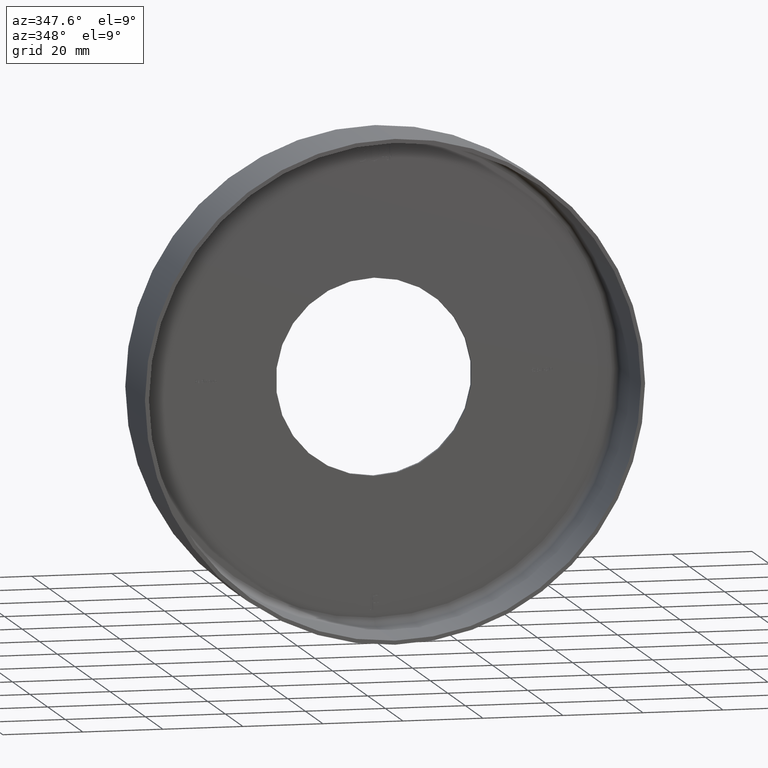
[diagram: clean part render]
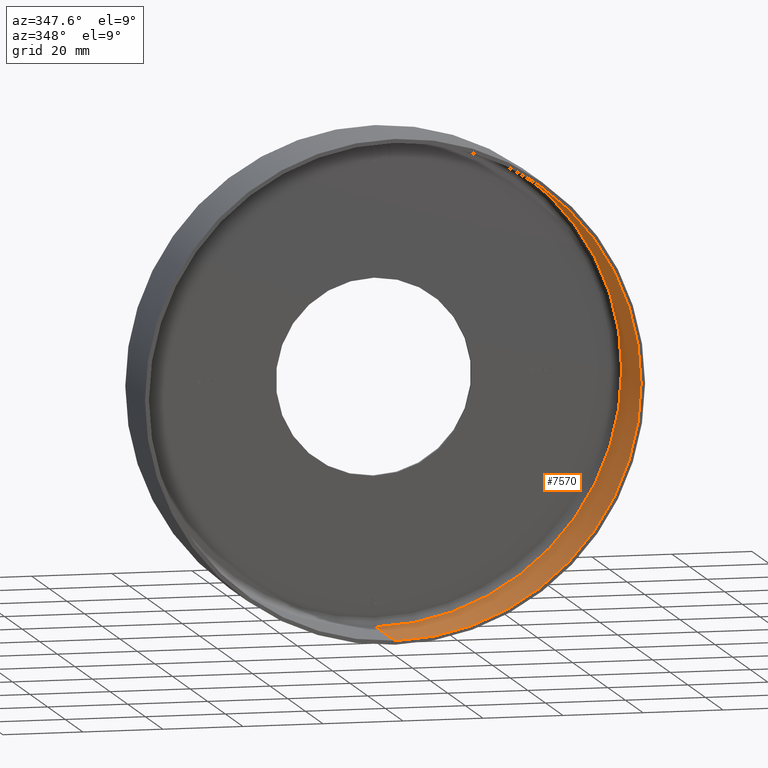
[diagram: same view with one face highlighted and labeled with its STEP entity id]
A machine part, auxiliary view. The second image highlights one B-rep face of the part: STEP entity #7570.
In plain terms, the highlighted cylindrical surface (partial cylindrical patch) has radius 61.5 mm, axis along (-0, -1, -0).
Its self-contained STEP definition (entity closure, byte-faithful):
#202 = EDGE_CURVE ( 'NONE', #1816, #14434, #5124, .T. ) ;
#1301 = VERTEX_POINT ( 'NONE', #6618 ) ;
#1336 = AXIS2_PLACEMENT_3D ( 'NONE', #3174, #2000, #13215 ) ;
#1537 = FACE_OUTER_BOUND ( 'NONE', #6619, .T. ) ;
#1816 = VERTEX_POINT ( 'NONE', #8120 ) ;
#2000 = DIRECTION ( 'NONE',  ( -0.000000000000000000, -1.000000000000000000, -0.000000000000000000 ) ) ;
#2107 = DIRECTION ( 'NONE',  ( -0.000000000000000000, -1.000000000000000000, -0.000000000000000000 ) ) ;
#2397 = EDGE_CURVE ( 'NONE', #8210, #1301, #13770, .T. ) ;
#2539 = CARTESIAN_POINT ( 'NONE',  ( 7.531577814756222656E-15, 22.00000000000000355, 61.50000000000000000 ) ) ;
#3160 = VECTOR ( 'NONE', #6546, 1000.000000000000000 ) ;
#3174 = CARTESIAN_POINT ( 'NONE',  ( 0.000000000000000000, 22.00000000000000355, 0.000000000000000000 ) ) ;
#4272 = VECTOR ( 'NONE', #15005, 1000.000000000000000 ) ;
#5055 = EDGE_CURVE ( 'NONE', #14434, #1301, #14130, .T. ) ;
#5124 = CIRCLE ( 'NONE', #1336, 61.50000000000000000 ) ;
#5270 = CARTESIAN_POINT ( 'NONE',  ( 0.000000000000000000, -1.224646799147353207E-16, 0.000000000000000000 ) ) ;
#6166 = ORIENTED_EDGE ( 'NONE', *, *, #15947, .T. ) ;
#6247 = CARTESIAN_POINT ( 'NONE',  ( 7.531577814756222656E-15, 0.000000000000000000, 61.50000000000000000 ) ) ;
#6546 = DIRECTION ( 'NONE',  ( -0.000000000000000000, -1.000000000000000000, -0.000000000000000000 ) ) ;
#6618 = CARTESIAN_POINT ( 'NONE',  ( 7.531577814756222656E-15, -1.224646799147353207E-16, 61.50000000000000000 ) ) ;
#6619 = EDGE_LOOP ( 'NONE', ( #13166, #7334, #6166, #8258 ) ) ;
#7334 = ORIENTED_EDGE ( 'NONE', *, *, #202, .F. ) ;
#7570 = ADVANCED_FACE ( 'NONE', ( #1537 ), #15686, .F. ) ;
#8120 = CARTESIAN_POINT ( 'NONE',  ( 0.000000000000000000, 22.00000000000000355, -61.50000000000000000 ) ) ;
#8210 = VERTEX_POINT ( 'NONE', #13911 ) ;
#8258 = ORIENTED_EDGE ( 'NONE', *, *, #2397, .T. ) ;
#10534 = LINE ( 'NONE', #14041, #3160 ) ;
#10706 = DIRECTION ( 'NONE',  ( 0.000000000000000000, 0.000000000000000000, -1.000000000000000000 ) ) ;
#11176 = AXIS2_PLACEMENT_3D ( 'NONE', #5270, #13897, #15218 ) ;
#13166 = ORIENTED_EDGE ( 'NONE', *, *, #5055, .F. ) ;
#13215 = DIRECTION ( 'NONE',  ( 0.000000000000000000, 0.000000000000000000, -1.000000000000000000 ) ) ;
#13770 = CIRCLE ( 'NONE', #11176, 61.50000000000000000 ) ;
#13897 = DIRECTION ( 'NONE',  ( -0.000000000000000000, -1.000000000000000000, -0.000000000000000000 ) ) ;
#13911 = CARTESIAN_POINT ( 'NONE',  ( 0.000000000000000000, -1.224646799147353207E-16, -61.50000000000000000 ) ) ;
#14041 = CARTESIAN_POINT ( 'NONE',  ( 0.000000000000000000, 0.000000000000000000, -61.50000000000000000 ) ) ;
#14130 = LINE ( 'NONE', #6247, #4272 ) ;
#14434 = VERTEX_POINT ( 'NONE', #2539 ) ;
#15005 = DIRECTION ( 'NONE',  ( -0.000000000000000000, -1.000000000000000000, -0.000000000000000000 ) ) ;
#15218 = DIRECTION ( 'NONE',  ( 0.000000000000000000, 0.000000000000000000, -1.000000000000000000 ) ) ;
#15422 = CARTESIAN_POINT ( 'NONE',  ( 0.000000000000000000, 0.000000000000000000, 0.000000000000000000 ) ) ;
#15686 = CYLINDRICAL_SURFACE ( 'NONE', #15990, 61.50000000000000000 ) ;
#15947 = EDGE_CURVE ( 'NONE', #1816, #8210, #10534, .T. ) ;
#15990 = AXIS2_PLACEMENT_3D ( 'NONE', #15422, #2107, #10706 ) ;